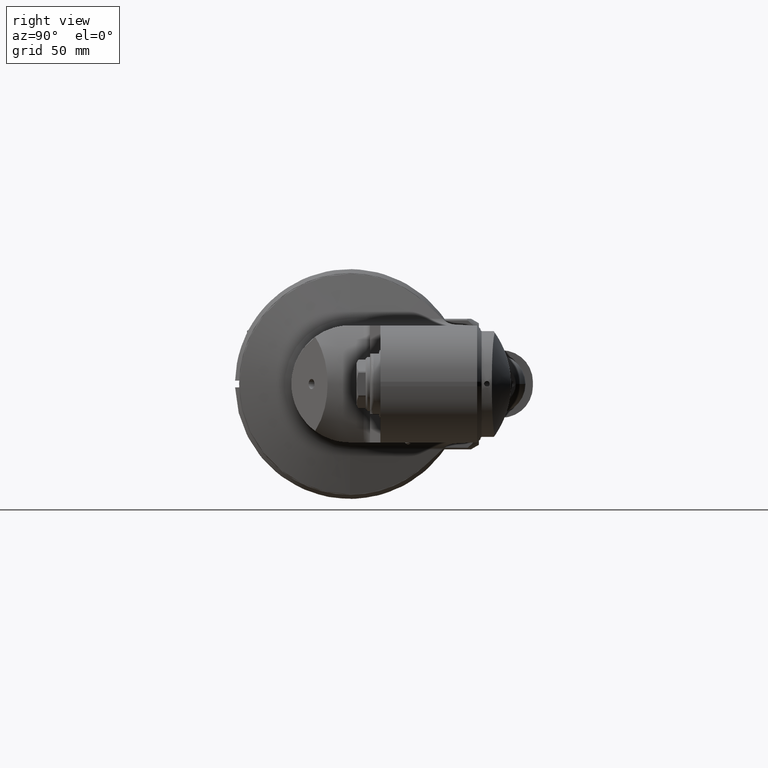
[diagram: clean part render]
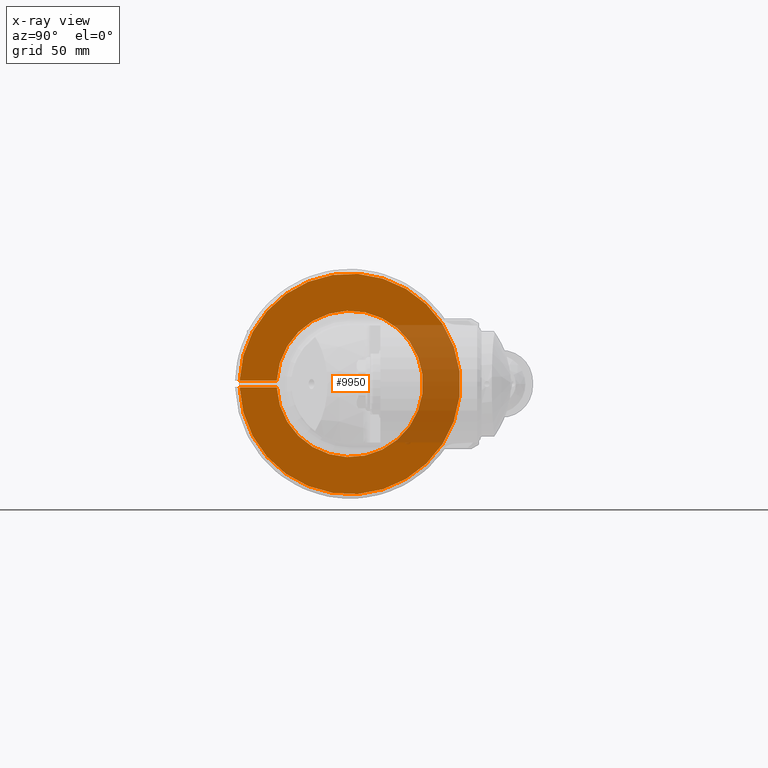
[diagram: x-ray — body ghosted, one internal face saturated and labeled with its STEP entity id]
A machine part, right view, then the same camera in x-ray: the body is ghosted and one INTERNAL B-rep face — a face not visible from any outside direction — is saturated and labeled: STEP entity #9950.
In plain terms, the highlighted planar face has unit normal (1, 0, -0).
Its self-contained STEP definition (entity closure, byte-faithful):
#838=PLANE('',#10782);
#1245=FACE_OUTER_BOUND('',#1857,.T.);
#1857=EDGE_LOOP('',(#6924,#6925,#6926,#6927));
#2583=LINE('',#15030,#3273);
#2588=LINE('',#15064,#3278);
#3273=VECTOR('',#11950,16.51166927349);
#3278=VECTOR('',#11961,16.51166927349);
#3961=CIRCLE('',#10778,49.);
#3964=CIRCLE('',#10783,32.5);
#4490=VERTEX_POINT('',#15019);
#4491=VERTEX_POINT('',#15023);
#4492=VERTEX_POINT('',#15029);
#4500=VERTEX_POINT('',#15063);
#5453=EDGE_CURVE('',#4491,#4490,#3961,.T.);
#5455=EDGE_CURVE('',#4492,#4491,#2583,.T.);
#5464=EDGE_CURVE('',#4490,#4500,#2588,.T.);
#5465=EDGE_CURVE('',#4500,#4492,#3964,.T.);
#6924=ORIENTED_EDGE('',*,*,#5453,.T.);
#6925=ORIENTED_EDGE('',*,*,#5464,.T.);
#6926=ORIENTED_EDGE('',*,*,#5465,.T.);
#6927=ORIENTED_EDGE('',*,*,#5455,.T.);
#9950=ADVANCED_FACE('',(#1245),#838,.T.);
#10778=AXIS2_PLACEMENT_3D('',#15024,#11946,#11947);
#10782=AXIS2_PLACEMENT_3D('',#15062,#11959,#11960);
#10783=AXIS2_PLACEMENT_3D('',#15065,#11962,#11963);
#11946=DIRECTION('center_axis',(1.,0.,0.));
#11947=DIRECTION('ref_axis',(0.,1.,0.));
#11950=DIRECTION('',(0.,-1.,0.));
#11959=DIRECTION('center_axis',(1.,0.,0.));
#11960=DIRECTION('ref_axis',(0.,-1.,0.));
#11961=DIRECTION('',(0.,1.,0.));
#11962=DIRECTION('center_axis',(-1.,0.,0.));
#11963=DIRECTION('ref_axis',(0.,-0.998934343430642,0.0461538461538519));
#15019=CARTESIAN_POINT('',(-12.,-48.97703543499,1.5));
#15023=CARTESIAN_POINT('',(-12.,-48.97703543499,-1.5));
#15024=CARTESIAN_POINT('Origin',(-12.,0.,0.));
#15029=CARTESIAN_POINT('',(-12.,-32.4653661615,-1.5));
#15030=CARTESIAN_POINT('',(-12.,-32.4653661615,-1.5));
#15062=CARTESIAN_POINT('Origin',(-12.,-49.13074005203,0.));
#15063=CARTESIAN_POINT('',(-12.,-32.4653661615,1.5));
#15064=CARTESIAN_POINT('',(-12.,-48.97703543499,1.5));
#15065=CARTESIAN_POINT('Origin',(-12.,0.,0.));